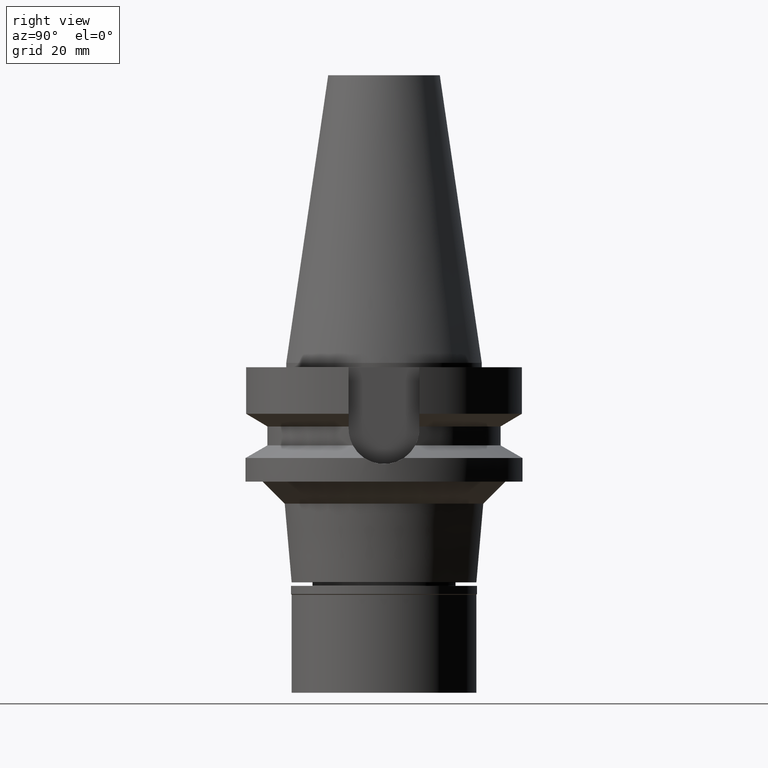
[diagram: clean part render]
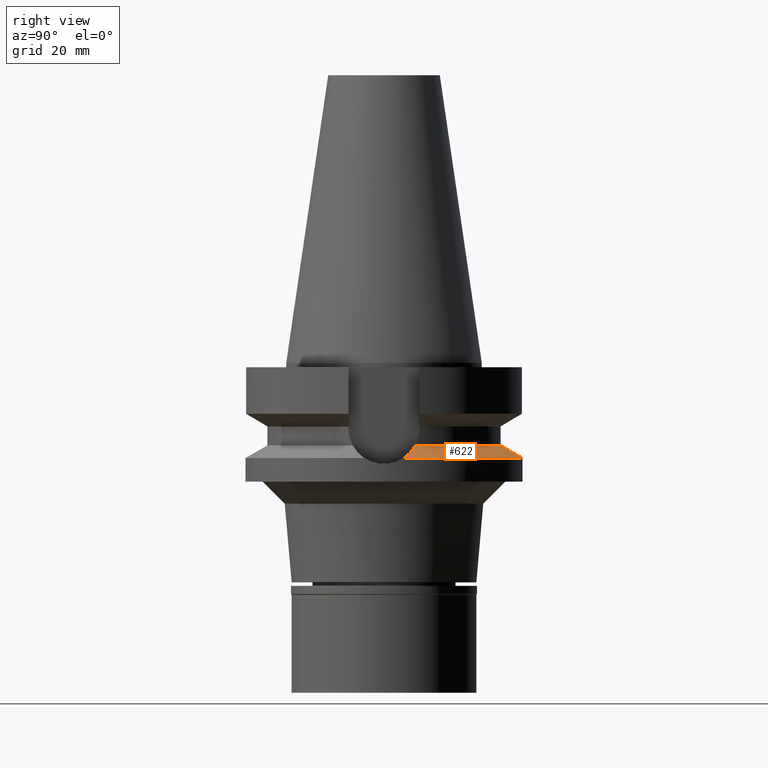
[diagram: same view with one face highlighted and labeled with its STEP entity id]
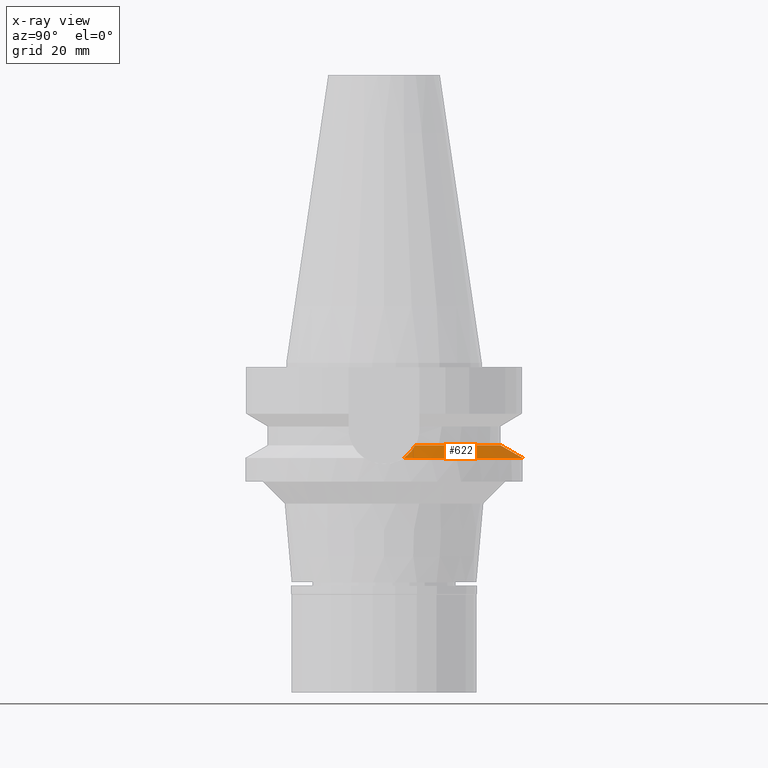
[diagram: x-ray of the same camera — body ghosted, the highlighted face saturated]
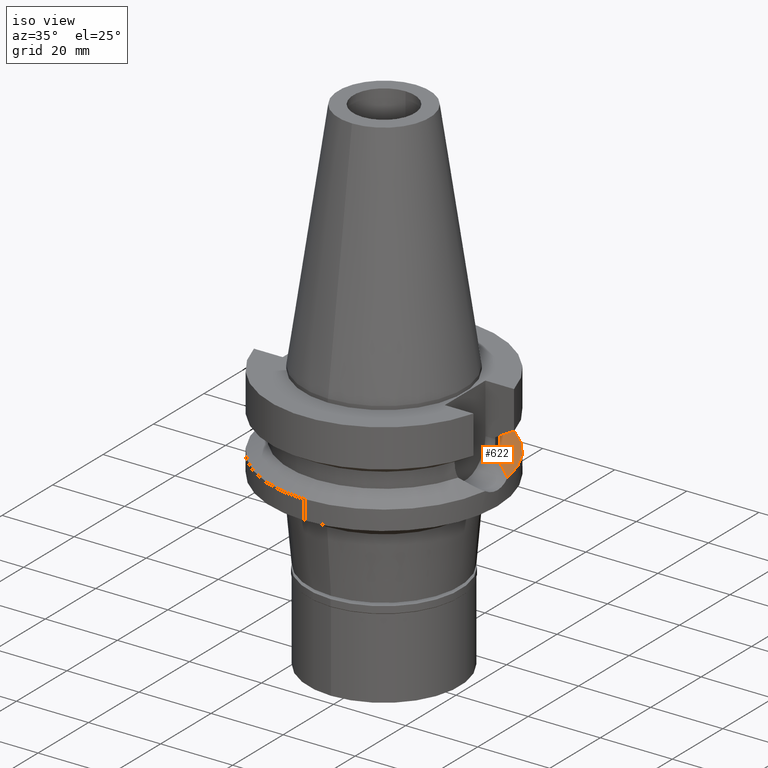
[diagram: same view with one face highlighted and labeled with its STEP entity id]
A machine part, right view. The second image highlights one B-rep face of the part: STEP entity #622.
The next image is the same camera in x-ray: the body ghosted, the highlighted face saturated — about 0% of this face is hidden behind the body in this view.
A second angle (iso view) of the same face is appended — the face is thin or edge-on in the first view.
In plain terms, the highlighted conical surface has half-angle 60 deg.
Its self-contained STEP definition (entity closure, byte-faithful):
#2 = CARTESIAN_POINT ( 'NONE',  ( 31.17899877608999759, 4.485536235554000051, -21.63449434733000132 ) ) ;
#10 = AXIS2_PLACEMENT_3D ( 'NONE', #2978, #1855, #432 ) ;
#75 = ORIENTED_EDGE ( 'NONE', *, *, #2271, .F. ) ;
#78 = CARTESIAN_POINT ( 'NONE',  ( 0.0000000000000000000, 0.0000000000000000000, -20.19111867435999841 ) ) ;
#129 = CONICAL_SURFACE ( 'NONE', #2861, 29.00000000000000000, 1.047197551196400456 ) ;
#252 = CIRCLE ( 'NONE', #495, 31.50000000000000000 ) ;
#269 = CARTESIAN_POINT ( 'NONE',  ( -31.17899877608999759, 4.485536235554000051, -21.63449434733000132 ) ) ;
#323 = EDGE_CURVE ( 'NONE', #2353, #1935, #1848, .T. ) ;
#333 = DIRECTION ( 'NONE',  ( 0.0000000000000000000, 0.0000000000000000000, -1.000000000000000000 ) ) ;
#340 = CIRCLE ( 'NONE', #10, 26.49999999999998224 ) ;
#348 = DIRECTION ( 'NONE',  ( 0.0000000000000000000, 0.0000000000000000000, -1.000000000000000000 ) ) ;
#432 = DIRECTION ( 'NONE',  ( 0.9634623335000935818, 0.2678438573619981722, 0.0000000000000000000 ) ) ;
#452 = CIRCLE ( 'NONE', #2127, 31.50000000000001421 ) ;
#476 = CARTESIAN_POINT ( 'NONE',  ( 29.07496705675896109, 5.771503263818910767, -20.56193394514161099 ) ) ;
#495 = AXIS2_PLACEMENT_3D ( 'NONE', #1265, #348, #1013 ) ;
#499 = CARTESIAN_POINT ( 'NONE',  ( -29.75889273059397055, 5.446665479172124513, -20.91120107261824757 ) ) ;
#537 = DIRECTION ( 'NONE',  ( -0.9898094849552905306, 0.1423979757318985240, 0.0000000000000000000 ) ) ;
#555 = FACE_OUTER_BOUND ( 'NONE', #833, .T. ) ;
#565 = ORIENTED_EDGE ( 'NONE', *, *, #2250, .F. ) ;
#622 = ADVANCED_FACE ( 'NONE', ( #555 ), #129, .T. ) ;
#626 = CARTESIAN_POINT ( 'NONE',  ( 0.0000000000000000000, 31.50000000000000000, -21.63449434733000132 ) ) ;
#755 = CARTESIAN_POINT ( 'NONE',  ( 29.71618851238326542, 5.436210122726799376, -20.88922005751292588 ) ) ;
#833 = EDGE_LOOP ( 'NONE', ( #2188, #905, #2455, #565, #75 ) ) ;
#905 = ORIENTED_EDGE ( 'NONE', *, *, #2375, .F. ) ;
#907 = CARTESIAN_POINT ( 'NONE',  ( 31.17899877608999759, 4.485536235554000051, -21.63449434733000132 ) ) ;
#946 = CARTESIAN_POINT ( 'NONE',  ( 29.91828224920399393, 5.321328345253898640, -20.99229749284798530 ) ) ;
#973 = EDGE_CURVE ( 'NONE', #1925, #1688, #2697, .T. ) ;
#1013 = DIRECTION ( 'NONE',  ( 0.0000000000000000000, 1.000000000000000000, 0.0000000000000000000 ) ) ;
#1138 = CARTESIAN_POINT ( 'NONE',  ( -25.53175183775000079, 7.097862220092999941, -18.74774300138999905 ) ) ;
#1218 = CARTESIAN_POINT ( 'NONE',  ( -28.25004214916451062, 6.153585807487447212, -20.14066703122198732 ) ) ;
#1265 = CARTESIAN_POINT ( 'NONE',  ( 0.0000000000000000000, 0.0000000000000000000, -21.63449434733000132 ) ) ;
#1424 = CARTESIAN_POINT ( 'NONE',  ( 25.53175183775000079, 7.097862220092999941, -18.74774300138999905 ) ) ;
#1440 = CARTESIAN_POINT ( 'NONE',  ( 28.90934931403126029, 5.852553635641013052, -20.47736594035038493 ) ) ;
#1444 = CARTESIAN_POINT ( 'NONE',  ( 25.53175183775000079, 7.097862220092999941, -18.74774300138999905 ) ) ;
#1451 = CARTESIAN_POINT ( 'NONE',  ( -30.53357413355301730, 4.975199675093015195, -21.30591255981861210 ) ) ;
#1469 = CARTESIAN_POINT ( 'NONE',  ( 30.50025720216212122, 4.971275835563912615, -21.28896631692084185 ) ) ;
#1651 = CARTESIAN_POINT ( 'NONE',  ( 29.40089477840012222, 5.605314651265508985, -20.72832168607880021 ) ) ;
#1672 = CARTESIAN_POINT ( 'NONE',  ( -27.60141898915459535, 6.420425111571988808, -19.80914113437540891 ) ) ;
#1688 = VERTEX_POINT ( 'NONE', #1444 ) ;
#1691 = CARTESIAN_POINT ( 'NONE',  ( 28.96379258105523391, 5.826162607649868264, -20.50516712603028324 ) ) ;
#1697 = CARTESIAN_POINT ( 'NONE',  ( -28.79845843200160260, 5.905511484549917256, -20.42073989303249348 ) ) ;
#1705 = DIRECTION ( 'NONE',  ( 0.0000000000000000000, 0.0000000000000000000, -1.000000000000000000 ) ) ;
#1748 = DIRECTION ( 'NONE',  ( 0.0000000000000000000, -1.000000000000000000, 0.0000000000000000000 ) ) ;
#1848 = B_SPLINE_CURVE_WITH_KNOTS ( 'NONE', 3,
 ( #1930, #1996, #2894, #1672, #2648, #1218, #2400, #2480, #2632, #1697, #499, #1451, #269 ),
 .UNSPECIFIED., .F., .F.,
 ( 4, 2, 2, 1, 2, 2, 4 ),
 ( 0.0000000000000000000, 0.2499999999999971134, 0.3749999999999959477, 0.4374999999999962808, 0.4687499999999970024, 0.4999999999999977796, 1.000000000000000000 ),
 .UNSPECIFIED. ) ;
#1855 = DIRECTION ( 'NONE',  ( 0.0000000000000000000, 0.0000000000000000000, 1.000000000000000000 ) ) ;
#1925 = VERTEX_POINT ( 'NONE', #907 ) ;
#1930 = CARTESIAN_POINT ( 'NONE',  ( -25.53175183775000079, 7.097862220092999941, -18.74774300138999905 ) ) ;
#1935 = VERTEX_POINT ( 'NONE', #2550 ) ;
#1996 = CARTESIAN_POINT ( 'NONE',  ( -26.17304044325019419, 6.921582971365759285, -19.07720337278810163 ) ) ;
#2127 = AXIS2_PLACEMENT_3D ( 'NONE', #2963, #1705, #537 ) ;
#2175 = CARTESIAN_POINT ( 'NONE',  ( 30.85583216079544044, 4.730712613962579915, -21.46997217522730494 ) ) ;
#2188 = ORIENTED_EDGE ( 'NONE', *, *, #323, .F. ) ;
#2250 = EDGE_CURVE ( 'NONE', #2959, #1925, #252, .T. ) ;
#2271 = EDGE_CURVE ( 'NONE', #1935, #2959, #452, .T. ) ;
#2353 = VERTEX_POINT ( 'NONE', #1138 ) ;
#2375 = EDGE_CURVE ( 'NONE', #1688, #2353, #340, .T. ) ;
#2400 = CARTESIAN_POINT ( 'NONE',  ( -28.43725290946147766, 6.072039584782899624, -20.23629071793599721 ) ) ;
#2455 = ORIENTED_EDGE ( 'NONE', *, *, #973, .F. ) ;
#2480 = CARTESIAN_POINT ( 'NONE',  ( -28.61831684667012254, 5.989425832234184455, -20.32875181073924509 ) ) ;
#2550 = CARTESIAN_POINT ( 'NONE',  ( -31.17899877608999759, 4.485536235554000051, -21.63449434733000132 ) ) ;
#2609 = CARTESIAN_POINT ( 'NONE',  ( 29.24020962922056910, 5.689062084806263186, -20.64630254082137384 ) ) ;
#2632 = CARTESIAN_POINT ( 'NONE',  ( -28.73766017745623103, 5.934131944648279422, -20.38969400838590573 ) ) ;
#2648 = CARTESIAN_POINT ( 'NONE',  ( -27.86742486445279354, 6.315016895504552252, -19.94516082683977842 ) ) ;
#2651 = CARTESIAN_POINT ( 'NONE',  ( 26.81264432570820233, 6.745766824128431871, -19.40579822207127947 ) ) ;
#2697 = B_SPLINE_CURVE_WITH_KNOTS ( 'NONE', 3,
 ( #2, #2175, #1469, #946, #755, #1651, #2609, #476, #1691, #1440, #2869, #2651, #1424 ),
 .UNSPECIFIED., .F., .F.,
 ( 4, 2, 2, 1, 2, 2, 4 ),
 ( 0.0000000000000000000, 0.2499999999999962252, 0.3749999999999941158, 0.4374999999999937272, 0.4687499999999937272, 0.4999999999999937828, 1.000000000000000000 ),
 .UNSPECIFIED. ) ;
#2861 = AXIS2_PLACEMENT_3D ( 'NONE', #78, #333, #1748 ) ;
#2869 = CARTESIAN_POINT ( 'NONE',  ( 27.91909336787736251, 6.325333313492783383, -19.97167127586869739 ) ) ;
#2894 = CARTESIAN_POINT ( 'NONE',  ( -26.77061830678886167, 6.728010224581521648, -19.38382714212666258 ) ) ;
#2959 = VERTEX_POINT ( 'NONE', #626 ) ;
#2963 = CARTESIAN_POINT ( 'NONE',  ( 0.0000000000000000000, 0.0000000000000000000, -21.63449434733000132 ) ) ;
#2978 = CARTESIAN_POINT ( 'NONE',  ( 0.0000000000000000000, 0.0000000000000000000, -18.74774300138999905 ) ) ;